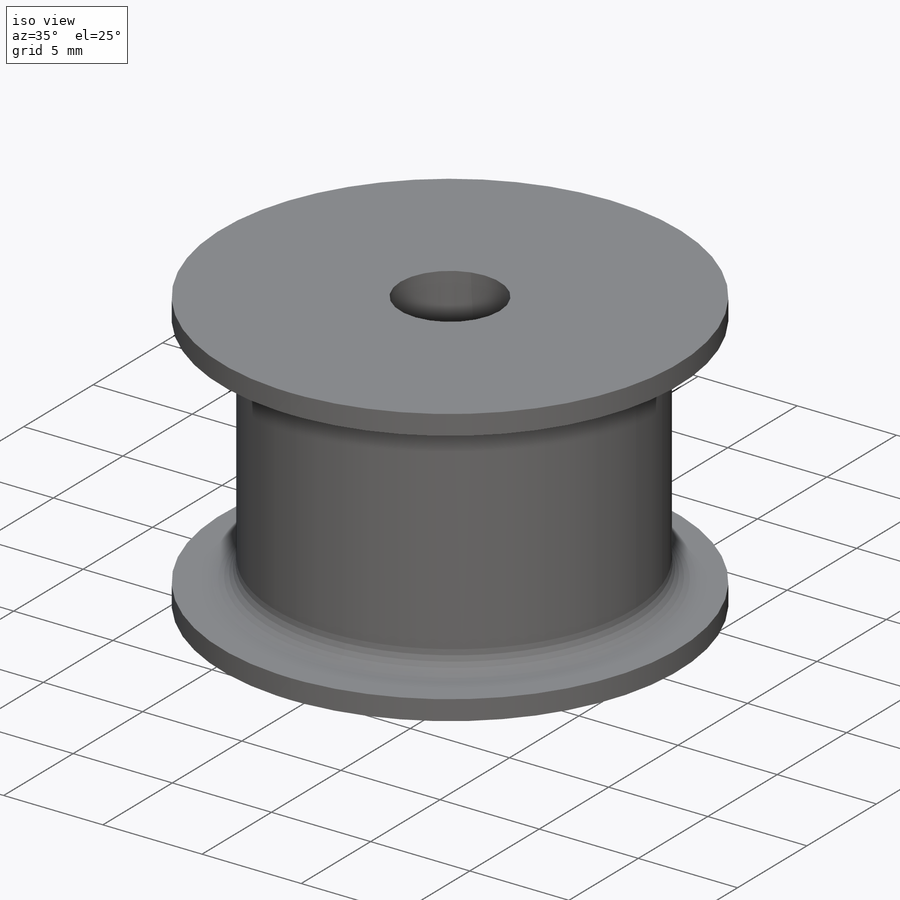
[diagram: iso view]
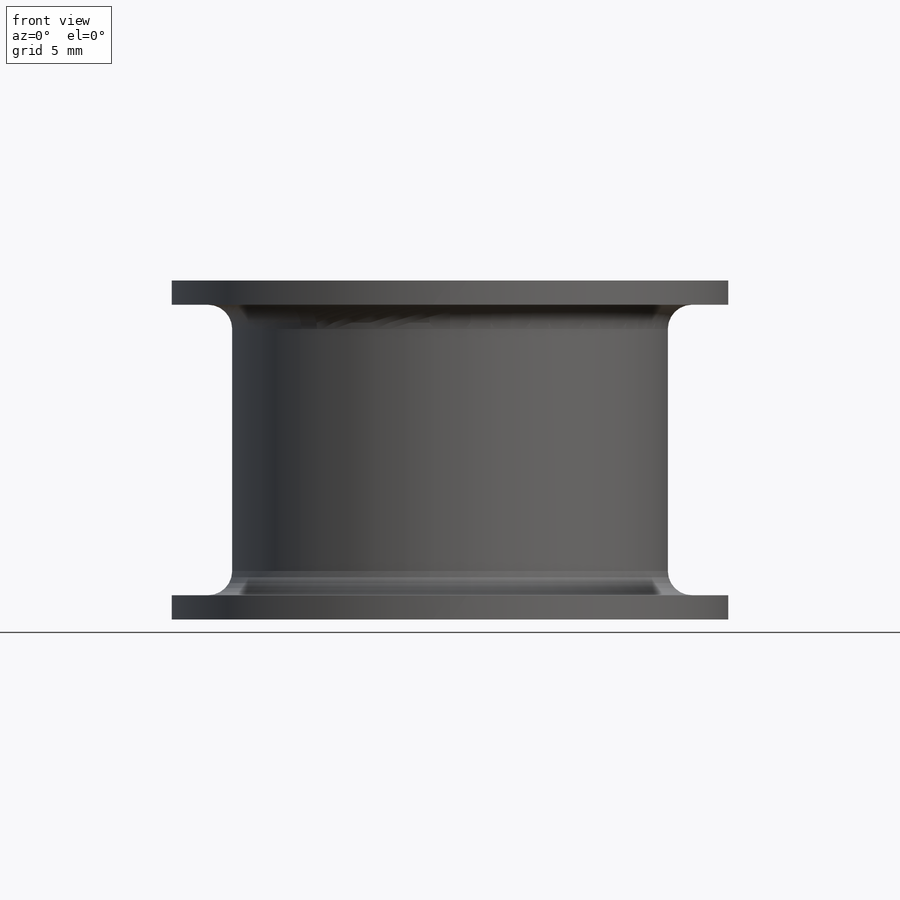
[diagram: front view]
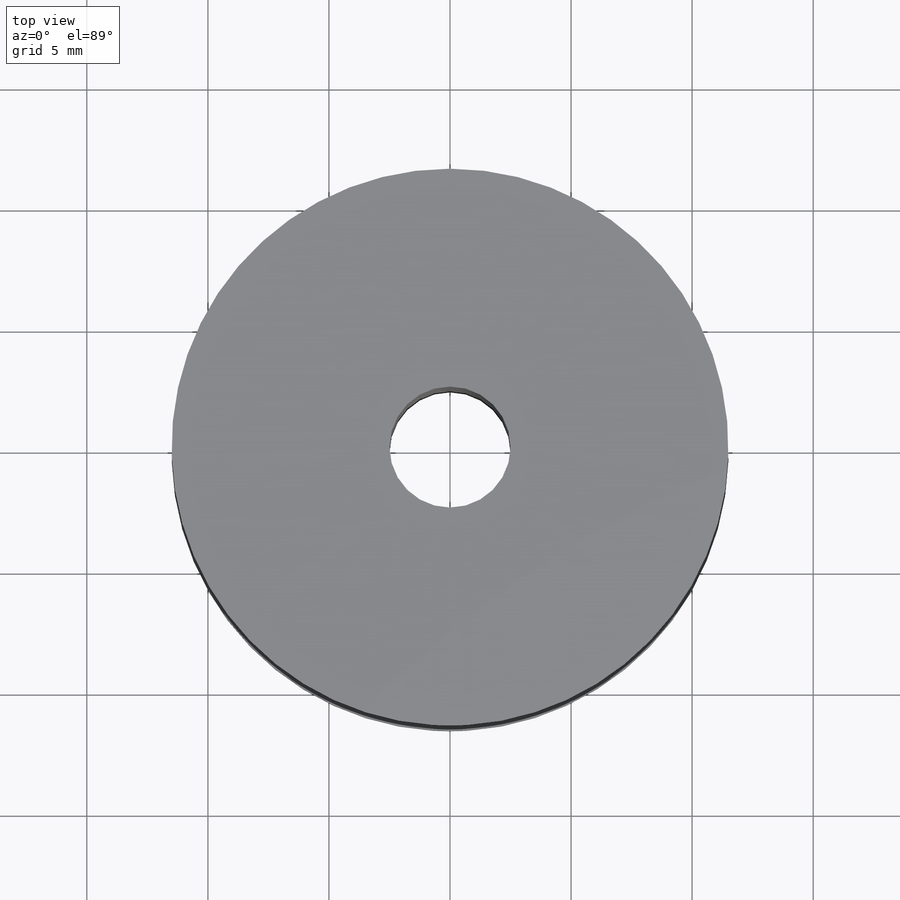
[diagram: top view]
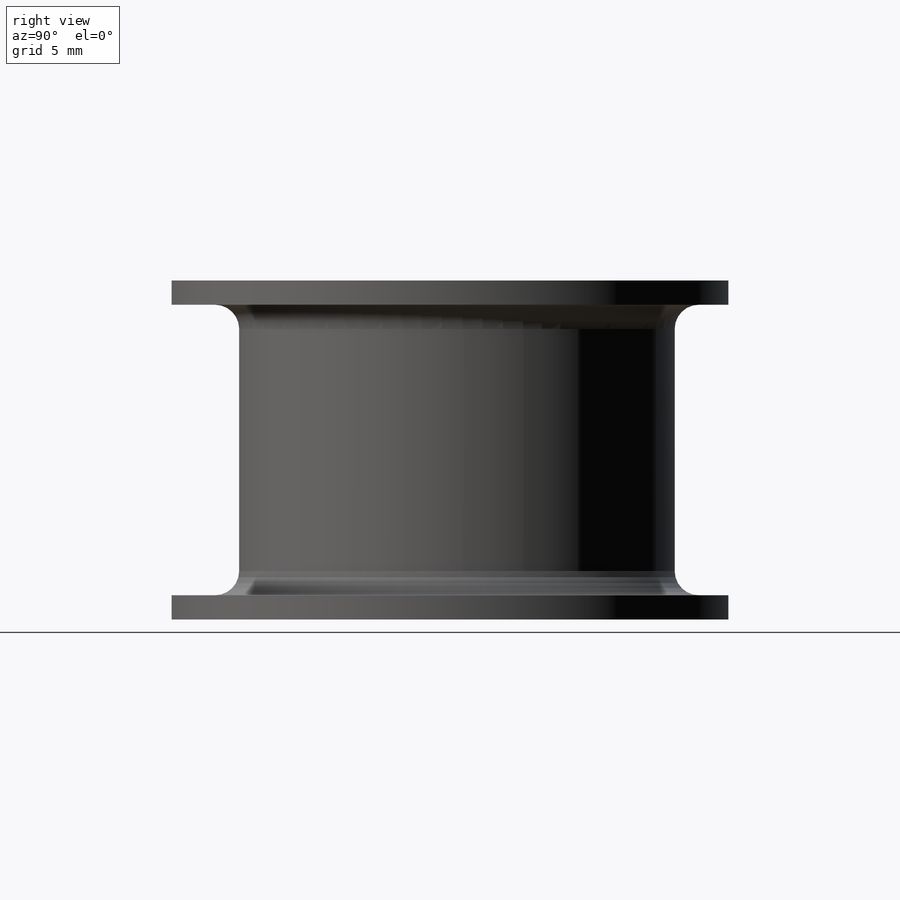
[diagram: right view]
SOLIDWORKS PART (.sldprt)
format: sldprt  version: not decoded by parser v0  size: 274,944 bytes
history: native  units: mm
features: sketch x5, extrude x4, fillet x2, material x1, cut_extrude x1 (+13 scaffold rows collapsed)
feature tree (26):
  scaffold x13  (default folders/planes/origin — collapsed)
  material  "Material <not specified>"
  sketch  "Sketch1"  dims[D1=9.9mm]
  extrude  "Boss-Extrude2"  Depth=0.001mm
  sketch  "Sketch4"  dims[D1=~8.067568mm]
  extrude  "Boss-Extrude3"  Depth=1mm
  sketch  "Sketch5"  dims[D1=~7.919018mm]
  extrude  "Boss-Extrude4"  Depth=12mm
  sketch  "Sketch6"  dims[D1=~11.211512mm]
  extrude  "Boss-Extrude5"  Depth=1mm
  fillet  "Fillet1"  Radius=1mm
  fillet  "Fillet2"  Radius=1mm
  sketch  "Sketch7"  dims[D1=~2.112444mm]
  cut_extrude  "Cut-Extrude1"  [1 undecoded]
decode coverage: 11 of 12 modeling features carry decoded parameters
note: ~ marks probable driven/reference dimensions
note: 1 parameter value undecoded
note: suppression state not decoded; provenance and decode notes live in map.json
